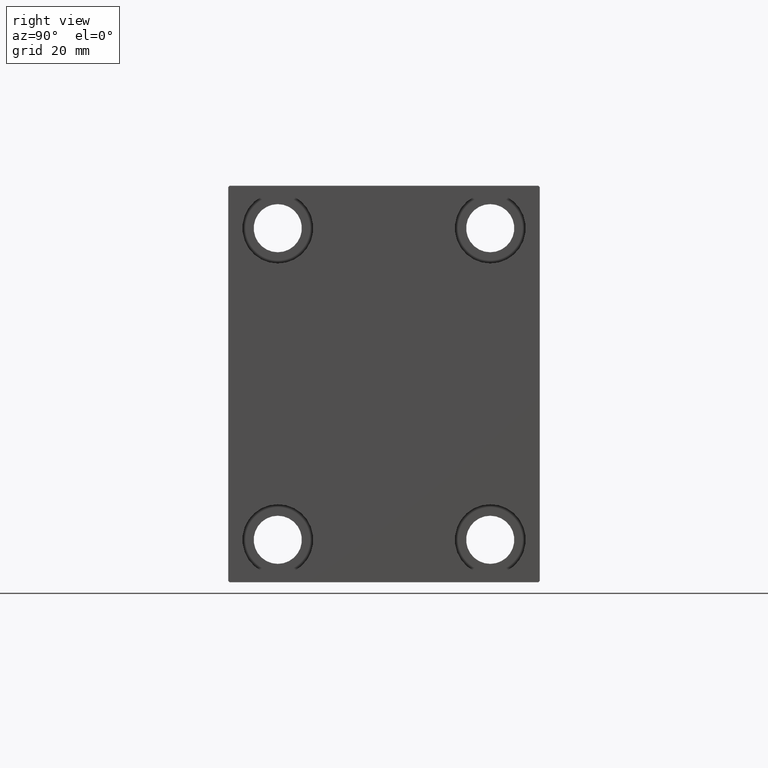
[diagram: clean part render]
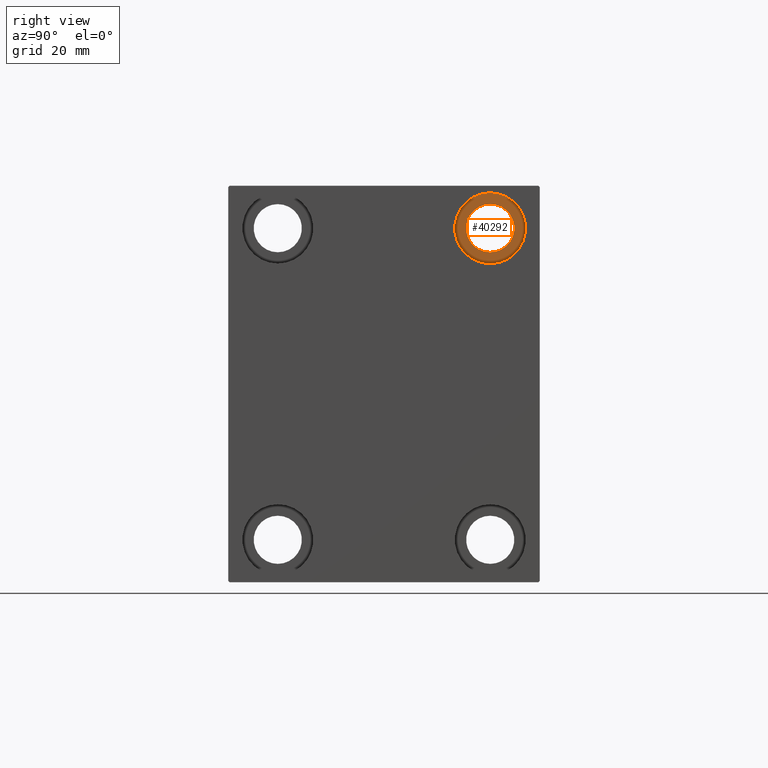
[diagram: same view with one face highlighted and labeled with its STEP entity id]
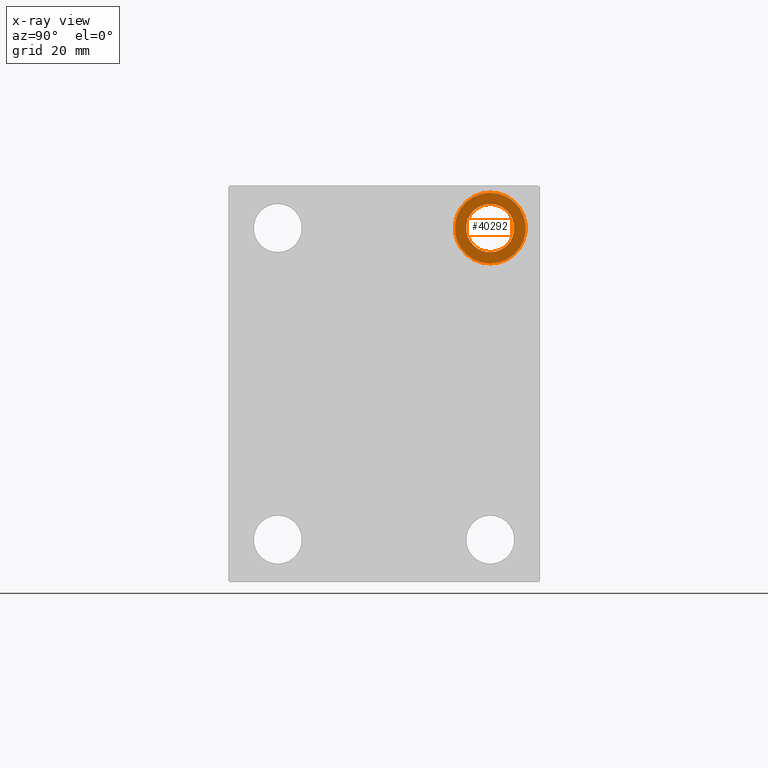
[diagram: x-ray of the same camera — body ghosted, the highlighted face saturated]
A machine part, right view. The second image highlights one B-rep face of the part: STEP entity #40292.
The next image is the same camera in x-ray: the body ghosted, the highlighted face saturated — about 0% of this face is hidden behind the body in this view.
In plain terms, the highlighted planar face has unit normal (1, 0, 0).
Its self-contained STEP definition (entity closure, byte-faithful):
#114 = ORIENTED_EDGE ( 'NONE', *, *, #17963, .T. ) ;
#509 = CARTESIAN_POINT ( 'NONE',  ( 155.9999999999999716, 0.000000000000000000, 0.000000000000000000 ) ) ;
#998 = DIRECTION ( 'NONE',  ( -1.000000000000000000, -0.000000000000000000, -0.000000000000000000 ) ) ;
#1341 = AXIS2_PLACEMENT_3D ( 'NONE', #7961, #8402, #22000 ) ;
#3897 = DIRECTION ( 'NONE',  ( 0.000000000000000000, 0.000000000000000000, 1.000000000000000000 ) ) ;
#7857 = EDGE_CURVE ( 'NONE', #14124, #42205, #39514, .T. ) ;
#7961 = CARTESIAN_POINT ( 'NONE',  ( 155.9999999999999716, 37.50000000000000711, 55.00000000000000711 ) ) ;
#8230 = ORIENTED_EDGE ( 'NONE', *, *, #7857, .T. ) ;
#8402 = DIRECTION ( 'NONE',  ( -1.000000000000000000, -0.000000000000000000, -0.000000000000000000 ) ) ;
#8716 = AXIS2_PLACEMENT_3D ( 'NONE', #20497, #26977, #10016 ) ;
#10016 = DIRECTION ( 'NONE',  ( 0.000000000000000000, 0.000000000000000000, 1.000000000000000000 ) ) ;
#10555 = EDGE_LOOP ( 'NONE', ( #114, #8230 ) ) ;
#10975 = DIRECTION ( 'NONE',  ( 1.000000000000000000, 0.000000000000000000, -0.000000000000000000 ) ) ;
#11616 = AXIS2_PLACEMENT_3D ( 'NONE', #21293, #998, #3897 ) ;
#14124 = VERTEX_POINT ( 'NONE', #27956 ) ;
#17530 = VERTEX_POINT ( 'NONE', #38323 ) ;
#17643 = CARTESIAN_POINT ( 'NONE',  ( 155.9999999999999716, 37.50000000000000711, 63.50000000000000000 ) ) ;
#17963 = EDGE_CURVE ( 'NONE', #42205, #14124, #20574, .T. ) ;
#20117 = CIRCLE ( 'NONE', #8716, 12.49999999999999645 ) ;
#20497 = CARTESIAN_POINT ( 'NONE',  ( 155.9999999999999716, 37.50000000000000711, 55.00000000000000711 ) ) ;
#20574 = CIRCLE ( 'NONE', #1341, 8.499999999999992895 ) ;
#20582 = PLANE ( 'NONE',  #37375 ) ;
#21293 = CARTESIAN_POINT ( 'NONE',  ( 155.9999999999999716, 37.50000000000000711, 55.00000000000000711 ) ) ;
#22000 = DIRECTION ( 'NONE',  ( 0.000000000000000000, 0.000000000000000000, -1.000000000000000000 ) ) ;
#23699 = FACE_BOUND ( 'NONE', #10555, .T. ) ;
#23903 = CARTESIAN_POINT ( 'NONE',  ( 155.9999999999999716, 37.50000000000000711, 55.00000000000000711 ) ) ;
#24110 = ORIENTED_EDGE ( 'NONE', *, *, #36090, .F. ) ;
#24868 = ORIENTED_EDGE ( 'NONE', *, *, #33286, .F. ) ;
#26576 = EDGE_LOOP ( 'NONE', ( #24110, #24868 ) ) ;
#26977 = DIRECTION ( 'NONE',  ( -1.000000000000000000, -0.000000000000000000, -0.000000000000000000 ) ) ;
#27956 = CARTESIAN_POINT ( 'NONE',  ( 155.9999999999999716, 37.50000000000000711, 46.50000000000001421 ) ) ;
#28387 = VERTEX_POINT ( 'NONE', #35860 ) ;
#31041 = DIRECTION ( 'NONE',  ( 0.000000000000000000, 0.000000000000000000, -1.000000000000000000 ) ) ;
#33286 = EDGE_CURVE ( 'NONE', #17530, #28387, #20117, .T. ) ;
#33836 = AXIS2_PLACEMENT_3D ( 'NONE', #23903, #37488, #31041 ) ;
#35824 = CIRCLE ( 'NONE', #11616, 12.49999999999999645 ) ;
#35860 = CARTESIAN_POINT ( 'NONE',  ( 155.9999999999999716, 37.50000000000000711, 42.50000000000000711 ) ) ;
#36090 = EDGE_CURVE ( 'NONE', #28387, #17530, #35824, .T. ) ;
#37375 = AXIS2_PLACEMENT_3D ( 'NONE', #509, #10975, #40627 ) ;
#37488 = DIRECTION ( 'NONE',  ( -1.000000000000000000, -0.000000000000000000, -0.000000000000000000 ) ) ;
#37503 = FACE_OUTER_BOUND ( 'NONE', #26576, .T. ) ;
#38323 = CARTESIAN_POINT ( 'NONE',  ( 155.9999999999999716, 37.50000000000000711, 67.50000000000000000 ) ) ;
#39514 = CIRCLE ( 'NONE', #33836, 8.499999999999992895 ) ;
#40292 = ADVANCED_FACE ( 'NONE', ( #37503, #23699 ), #20582, .T. ) ;
#40627 = DIRECTION ( 'NONE',  ( 0.000000000000000000, 0.000000000000000000, 1.000000000000000000 ) ) ;
#42205 = VERTEX_POINT ( 'NONE', #17643 ) ;